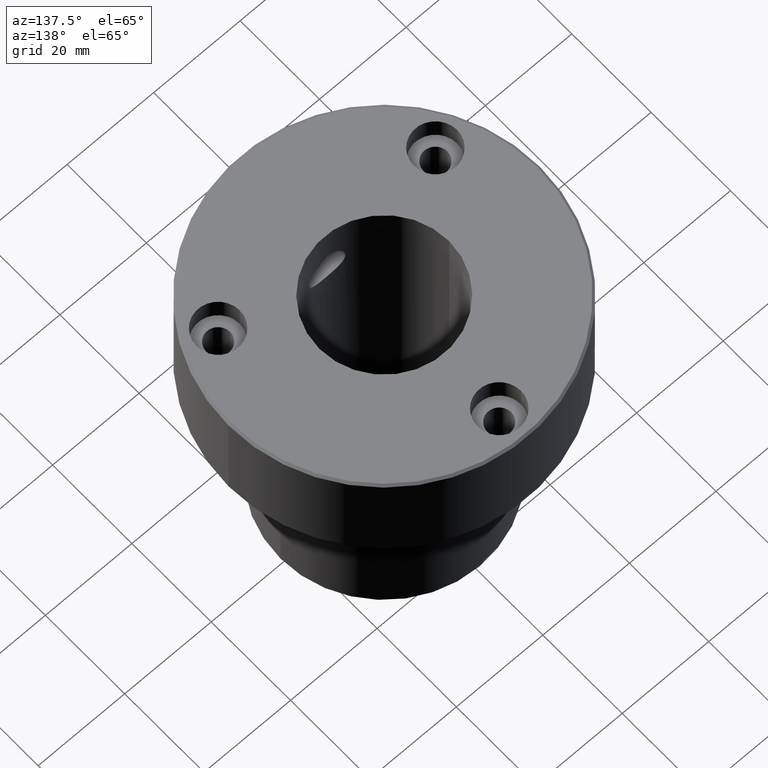
[diagram: clean part render]
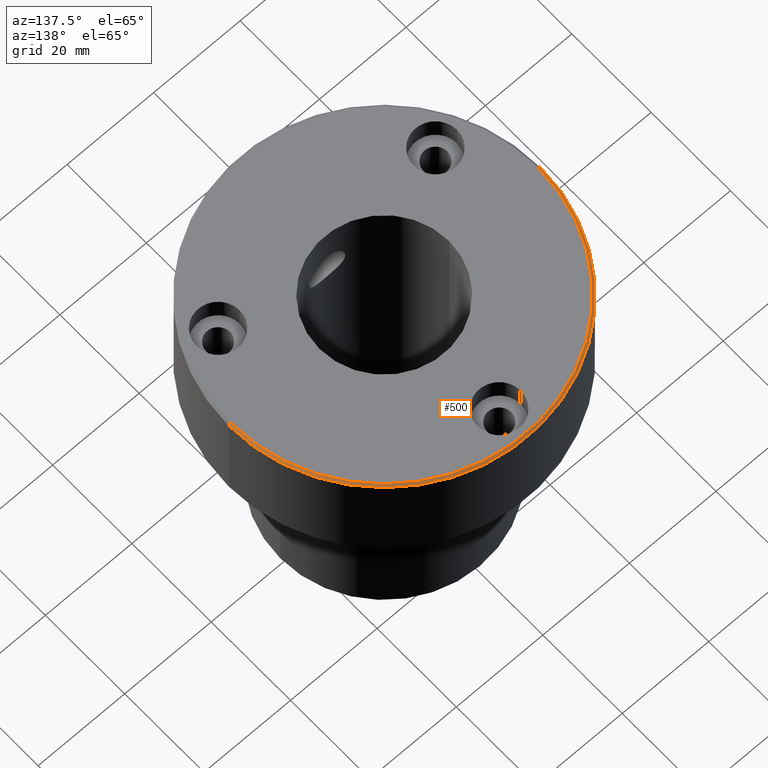
[diagram: same view with one face highlighted and labeled with its STEP entity id]
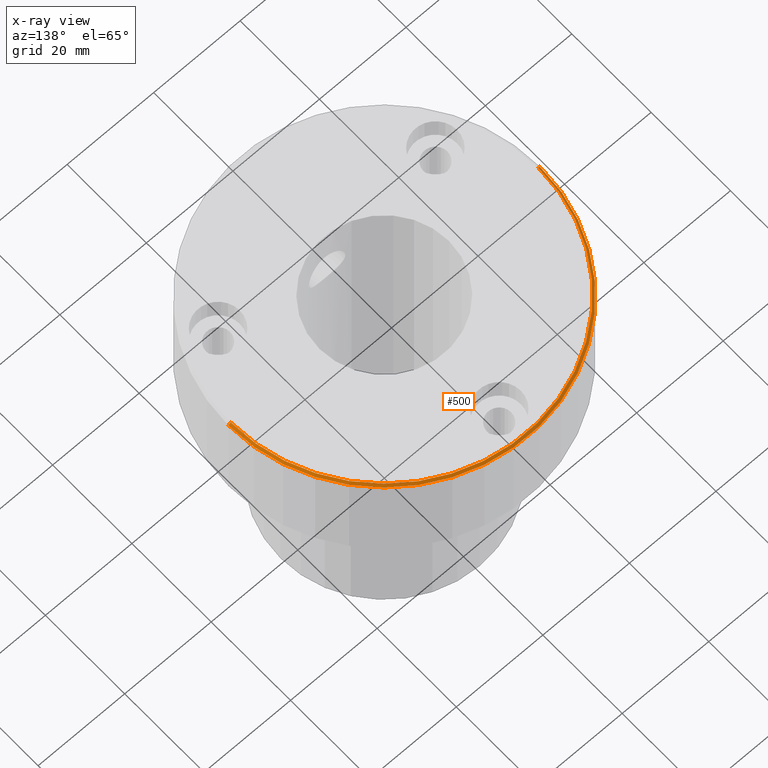
[diagram: x-ray of the same camera — body ghosted, the highlighted face saturated]
A machine part, auxiliary view. The second image highlights one B-rep face of the part: STEP entity #500.
The next image is the same camera in x-ray: the body ghosted, the highlighted face saturated — about 0% of this face is hidden behind the body in this view.
In plain terms, the highlighted conical surface has half-angle 45 deg.
Its self-contained STEP definition (entity closure, byte-faithful):
#30 = ORIENTED_EDGE ( 'NONE', *, *, #992, .F. ) ;
#35 = DIRECTION ( 'NONE',  ( 1.000000000000000000, 0.000000000000000000, 0.000000000000000000 ) ) ;
#81 = CONICAL_SURFACE ( 'NONE', #453, 35.50000000000001421, 0.7853981633974482790 ) ;
#87 = FACE_OUTER_BOUND ( 'NONE', #629, .T. ) ;
#92 = CARTESIAN_POINT ( 'NONE',  ( 35.50000000000001421, 4.347496136973105648E-15, 0.000000000000000000 ) ) ;
#114 = VERTEX_POINT ( 'NONE', #632 ) ;
#130 = CARTESIAN_POINT ( 'NONE',  ( 0.000000000000000000, 0.000000000000000000, 0.000000000000000000 ) ) ;
#360 = CARTESIAN_POINT ( 'NONE',  ( 0.000000000000000000, 0.000000000000000000, 0.000000000000000000 ) ) ;
#386 = DIRECTION ( 'NONE',  ( -0.7071067811865474617, 0.000000000000000000, -0.7071067811865474617 ) ) ;
#391 = DIRECTION ( 'NONE',  ( 1.000000000000000000, 0.000000000000000000, 0.000000000000000000 ) ) ;
#395 = DIRECTION ( 'NONE',  ( 0.7071067811865474617, 8.659560562354932858E-17, -0.7071067811865474617 ) ) ;
#444 = VERTEX_POINT ( 'NONE', #675 ) ;
#453 = AXIS2_PLACEMENT_3D ( 'NONE', #360, #458, #462 ) ;
#458 = DIRECTION ( 'NONE',  ( 0.000000000000000000, 0.000000000000000000, -1.000000000000000000 ) ) ;
#462 = DIRECTION ( 'NONE',  ( -1.000000000000000000, 0.000000000000000000, 0.000000000000000000 ) ) ;
#489 = CIRCLE ( 'NONE', #818, 36.00000000000000000 ) ;
#500 = ADVANCED_FACE ( 'NONE', ( #87 ), #81, .T. ) ;
#523 = VERTEX_POINT ( 'NONE', #937 ) ;
#531 = ORIENTED_EDGE ( 'NONE', *, *, #848, .F. ) ;
#548 = CIRCLE ( 'NONE', #1241, 35.50000000000001421 ) ;
#562 = VERTEX_POINT ( 'NONE', #698 ) ;
#594 = DIRECTION ( 'NONE',  ( 0.000000000000000000, 0.000000000000000000, -1.000000000000000000 ) ) ;
#629 = EDGE_LOOP ( 'NONE', ( #30, #897, #531, #655 ) ) ;
#632 = CARTESIAN_POINT ( 'NONE',  ( -36.00000000000000000, 4.408728476930470856E-15, -0.4999999999999796274 ) ) ;
#655 = ORIENTED_EDGE ( 'NONE', *, *, #823, .F. ) ;
#675 = CARTESIAN_POINT ( 'NONE',  ( 35.50000000000001421, 4.378112306951788646E-15, 0.000000000000000000 ) ) ;
#698 = CARTESIAN_POINT ( 'NONE',  ( 36.00000000000000000, 0.000000000000000000, -0.4999999999999796274 ) ) ;
#714 = VECTOR ( 'NONE', #395, 1000.000000000000114 ) ;
#818 = AXIS2_PLACEMENT_3D ( 'NONE', #1047, #594, #391 ) ;
#823 = EDGE_CURVE ( 'NONE', #523, #114, #1176, .T. ) ;
#848 = EDGE_CURVE ( 'NONE', #114, #562, #489, .T. ) ;
#861 = LINE ( 'NONE', #92, #714 ) ;
#897 = ORIENTED_EDGE ( 'NONE', *, *, #1151, .T. ) ;
#901 = DIRECTION ( 'NONE',  ( -0.000000000000000000, -0.000000000000000000, 1.000000000000000000 ) ) ;
#937 = CARTESIAN_POINT ( 'NONE',  ( -35.50000000000001421, 0.000000000000000000, 0.000000000000000000 ) ) ;
#946 = VECTOR ( 'NONE', #386, 1000.000000000000114 ) ;
#992 = EDGE_CURVE ( 'NONE', #444, #523, #548, .T. ) ;
#1047 = CARTESIAN_POINT ( 'NONE',  ( 0.000000000000000000, 0.000000000000000000, -0.4999999999999796274 ) ) ;
#1151 = EDGE_CURVE ( 'NONE', #444, #562, #861, .T. ) ;
#1154 = CARTESIAN_POINT ( 'NONE',  ( -35.50000000000001421, 0.000000000000000000, 0.000000000000000000 ) ) ;
#1176 = LINE ( 'NONE', #1154, #946 ) ;
#1241 = AXIS2_PLACEMENT_3D ( 'NONE', #130, #901, #35 ) ;